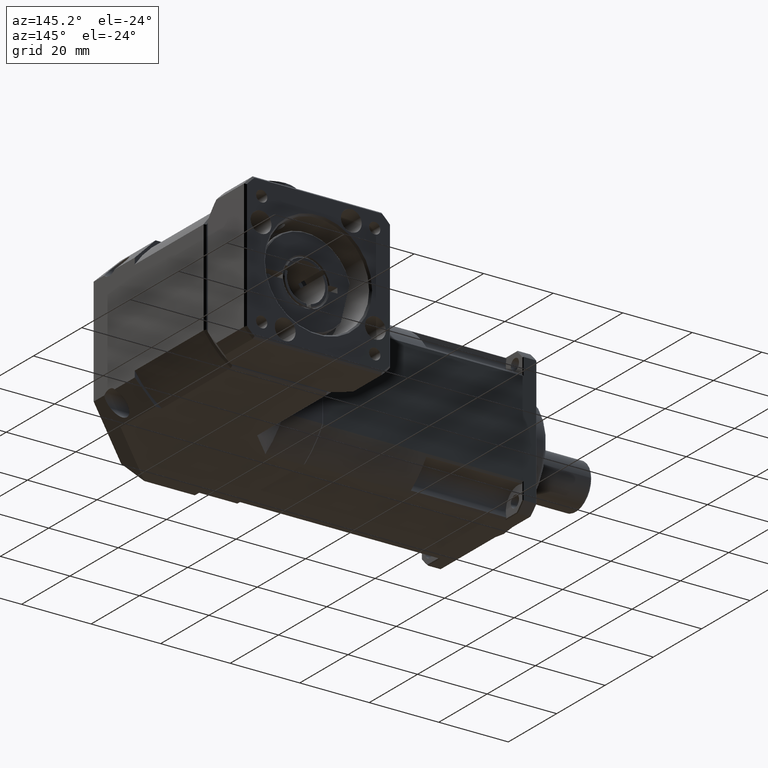
[diagram: clean part render]
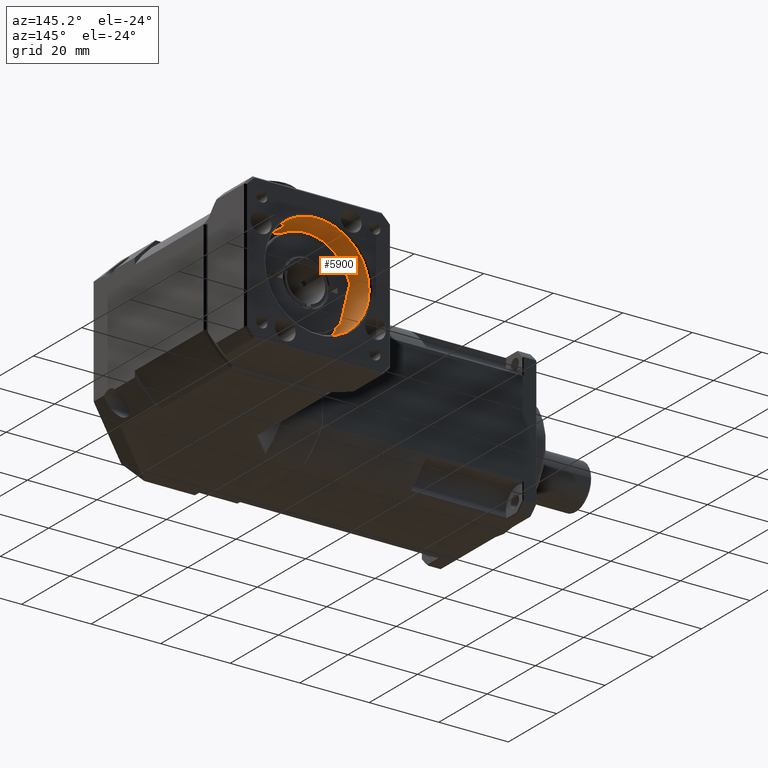
[diagram: same view with one face highlighted and labeled with its STEP entity id]
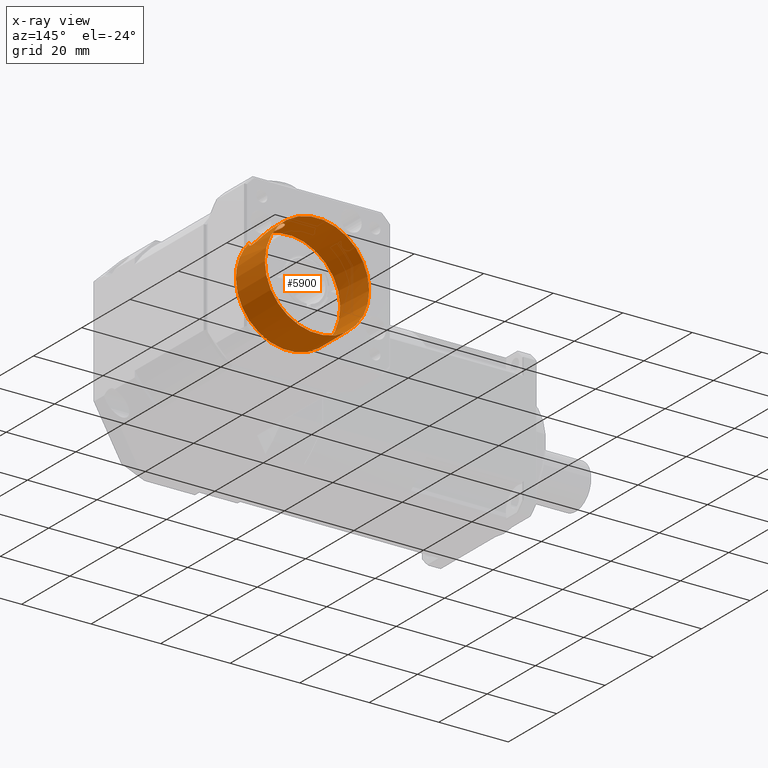
[diagram: x-ray of the same camera — body ghosted, the highlighted face saturated]
A machine part, auxiliary view. The second image highlights one B-rep face of the part: STEP entity #5900.
The next image is the same camera in x-ray: the body ghosted, the highlighted face saturated — about 0% of this face is hidden behind the body in this view.
In plain terms, the highlighted cylindrical surface (bore or boss wall) has radius 15 mm, axis along (-0, -1, -0).
Its self-contained STEP definition (entity closure, byte-faithful):
#126=B_SPLINE_CURVE_WITH_KNOTS('',3,(#9120,#9121,#9122,#9123,#9124,#9125,
#9126,#9127,#9128,#9129,#9130,#9131,#9132,#9133,#9134,#9135,#9136,#9137,
#9138,#9139,#9140,#9141,#9142,#9143,#9144,#9145,#9146,#9147,#9148,#9149,
#9150,#9151,#9152,#9153,#9154),.UNSPECIFIED.,.F.,.F.,(4,2,2,2,3,2,2,2,2,
2,2,2,2,2,2,2,4),(-0.473436031061411,-0.338963340215391,-0.169481670107695,
-0.0847408350538479,0.,0.0847408350538478,0.169481670107696,0.338963340215391,
0.562674307084904,0.786385273954417,0.968597147833243,1.15080902171207,
1.30917695804081,1.46754489436956,1.6259128306983,1.78428076702704,1.87138678774237),
 .UNSPECIFIED.);
#933=FACE_BOUND('',#1687,.T.);
#1089=CYLINDRICAL_SURFACE('',#6408,15.);
#1241=FACE_OUTER_BOUND('',#1686,.T.);
#1686=EDGE_LOOP('',(#4008,#4009));
#1687=EDGE_LOOP('',(#4010));
#2253=CIRCLE('',#6407,15.);
#2254=CIRCLE('',#6409,15.);
#2586=VERTEX_POINT('',#9115);
#2587=VERTEX_POINT('',#9118);
#2588=VERTEX_POINT('',#9119);
#3157=EDGE_CURVE('',#2586,#2586,#2253,.T.);
#3158=EDGE_CURVE('',#2587,#2588,#126,.T.);
#3159=EDGE_CURVE('',#2588,#2587,#2254,.T.);
#4008=ORIENTED_EDGE('',*,*,#3158,.T.);
#4009=ORIENTED_EDGE('',*,*,#3159,.T.);
#4010=ORIENTED_EDGE('',*,*,#3157,.F.);
#5900=ADVANCED_FACE('',(#1241,#933),#1089,.F.);
#6407=AXIS2_PLACEMENT_3D('',#9116,#7313,#7314);
#6408=AXIS2_PLACEMENT_3D('',#9117,#7315,#7316);
#6409=AXIS2_PLACEMENT_3D('',#9155,#7317,#7318);
#7313=DIRECTION('center_axis',(-4.91714059436155E-16,-1.,-1.33917927200762E-15));
#7314=DIRECTION('ref_axis',(-1.,4.91714059436295E-16,-1.0458300891969E-13));
#7315=DIRECTION('center_axis',(-4.91714059436155E-16,-1.,-1.33917927200762E-15));
#7316=DIRECTION('ref_axis',(1.,-4.91714059436295E-16,1.0458300891969E-13));
#7317=DIRECTION('center_axis',(-4.91714059436155E-16,-1.,-1.33917927200762E-15));
#7318=DIRECTION('ref_axis',(1.0458300891969E-13,1.33917927200756E-15,-1.));
#9115=CARTESIAN_POINT('',(75.6917864952736,72.0526784650899,-4.57136004514579));
#9116=CARTESIAN_POINT('Origin',(60.6917864952736,72.0526784650899,-4.57136004514736));
#9117=CARTESIAN_POINT('Origin',(60.6917864952736,66.3026784650899,-4.57136004514737));
#9118=CARTESIAN_POINT('',(71.6026991855208,60.0526784650899,5.72193798152043));
#9119=CARTESIAN_POINT('',(66.7808738050239,60.0526784650899,9.13714154088446));
#9120=CARTESIAN_POINT('Ctrl Pts',(71.6026991855208,60.0526784650899,5.72193798152043));
#9121=CARTESIAN_POINT('Ctrl Pts',(71.8980798961422,60.2561462090018,5.40883394667917));
#9122=CARTESIAN_POINT('Ctrl Pts',(72.1629886179126,60.4941570843935,5.1004747051107));
#9123=CARTESIAN_POINT('Ctrl Pts',(72.6786217927634,61.0838232056559,4.45786094482842));
#9124=CARTESIAN_POINT('Ctrl Pts',(72.946930079702,61.4975057192756,4.08472269202716));
#9125=CARTESIAN_POINT('Ctrl Pts',(73.2324926204055,62.2107476945606,3.66027213300734));
#9126=CARTESIAN_POINT('Ctrl Pts',(73.3088693156749,62.4640979571485,3.54151697895271));
#9127=CARTESIAN_POINT('Ctrl Pts',(73.4135172482935,62.993779629398,3.37641443345957));
#9128=CARTESIAN_POINT('Ctrl Pts',(73.4417864952728,63.2702090149104,3.33038026949351));
#9129=CARTESIAN_POINT('Ctrl Pts',(73.4417864952728,63.5526784650899,3.33038026949351));
#9130=CARTESIAN_POINT('Ctrl Pts',(73.4417864952728,63.8351479152694,3.33038026949351));
#9131=CARTESIAN_POINT('Ctrl Pts',(73.4135172482935,64.1115773007817,3.37641443345957));
#9132=CARTESIAN_POINT('Ctrl Pts',(73.3088693156749,64.6412589730313,3.54151697895271));
#9133=CARTESIAN_POINT('Ctrl Pts',(73.2324926204055,64.8946092356192,3.66027213300734));
#9134=CARTESIAN_POINT('Ctrl Pts',(72.946930079702,65.6078512109041,4.08472269202717));
#9135=CARTESIAN_POINT('Ctrl Pts',(72.6786217927634,66.0215337245239,4.45786094482843));
#9136=CARTESIAN_POINT('Ctrl Pts',(72.0116033394129,66.7843205337928,5.2891403453622));
#9137=CARTESIAN_POINT('Ctrl Pts',(71.5285267755348,67.1541877201479,5.82759002958137));
#9138=CARTESIAN_POINT('Ctrl Pts',(70.4264771200303,67.6644617165214,6.86581202944523));
#9139=CARTESIAN_POINT('Ctrl Pts',(69.8062065327853,67.8026784650899,7.36528188951944));
#9140=CARTESIAN_POINT('Ctrl Pts',(68.6913433209811,67.8026784650899,8.13202503315508));
#9141=CARTESIAN_POINT('Ctrl Pts',(68.128885080928,67.7083680661486,8.46920661384915));
#9142=CARTESIAN_POINT('Ctrl Pts',(67.0533192978245,67.2710754149549,9.02634973808191));
#9143=CARTESIAN_POINT('Ctrl Pts',(66.5416354371689,66.926542043514,9.24783921789538));
#9144=CARTESIAN_POINT('Ctrl Pts',(65.780421577689,66.1381697611539,9.54423687738919));
#9145=CARTESIAN_POINT('Ctrl Pts',(65.4658717640854,65.6713294061012,9.65033358255635));
#9146=CARTESIAN_POINT('Ctrl Pts',(65.0464832332904,64.642442600721,9.7843034315389));
#9147=CARTESIAN_POINT('Ctrl Pts',(64.9417864952721,64.0805715861857,9.81396233566887));
#9148=CARTESIAN_POINT('Ctrl Pts',(64.9417864952721,63.0247853439941,9.81396233566887));
#9149=CARTESIAN_POINT('Ctrl Pts',(65.0464832332904,62.4629143294587,9.7843034315389));
#9150=CARTESIAN_POINT('Ctrl Pts',(65.4658717640854,61.4340275240785,9.65033358255634));
#9151=CARTESIAN_POINT('Ctrl Pts',(65.780421577689,60.9671871690258,9.54423687738919));
#9152=CARTESIAN_POINT('Ctrl Pts',(66.3290688334657,60.3989653955247,9.33060734283103));
#9153=CARTESIAN_POINT('Ctrl Pts',(66.5470335442236,60.213755165734,9.24100947682277));
#9154=CARTESIAN_POINT('Ctrl Pts',(66.7808738050239,60.0526784650899,9.13714154088446));
#9155=CARTESIAN_POINT('Origin',(60.6917864952736,60.0526784650899,-4.57136004514738));